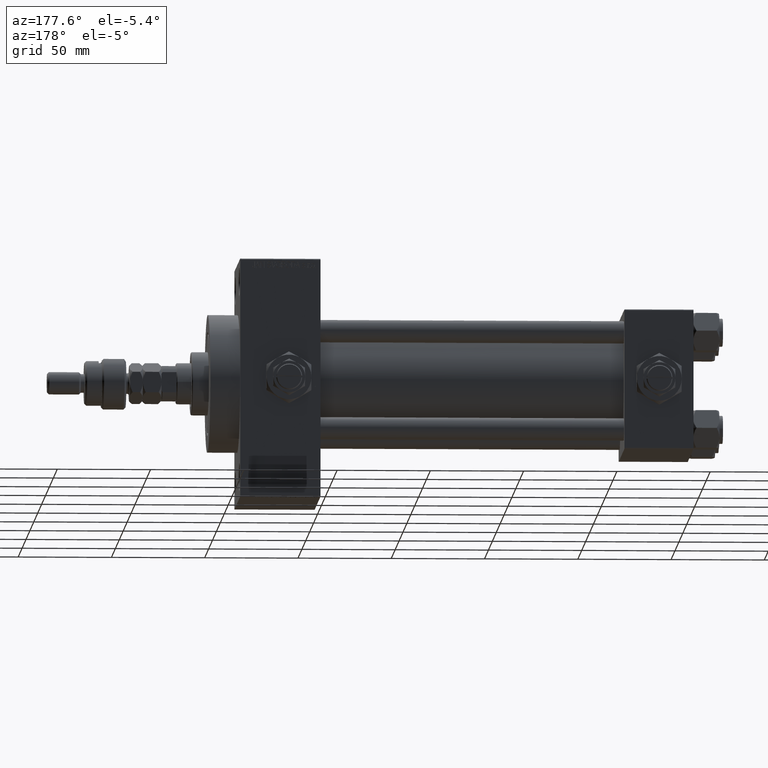
[diagram: clean part render]
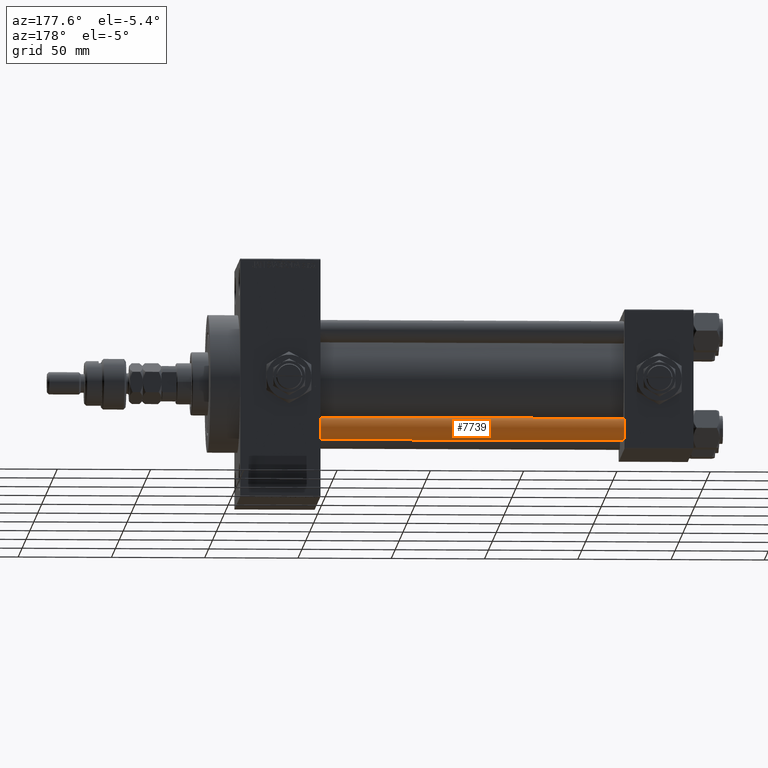
[diagram: same view with one face highlighted and labeled with its STEP entity id]
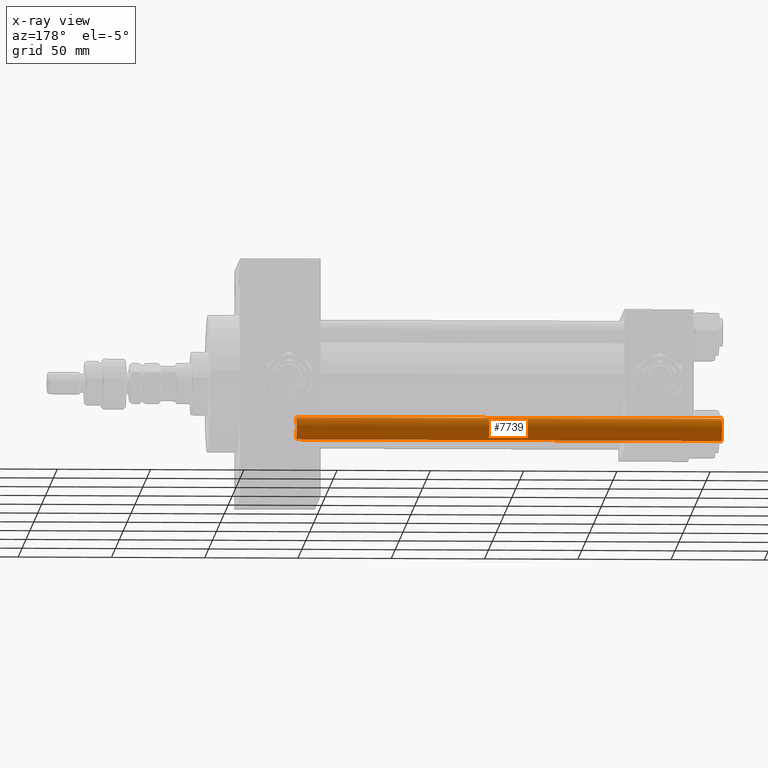
[diagram: x-ray of the same camera — body ghosted, the highlighted face saturated]
A machine part, auxiliary view. The second image highlights one B-rep face of the part: STEP entity #7739.
The next image is the same camera in x-ray: the body ghosted, the highlighted face saturated — about 0% of this face is hidden behind the body in this view.
In plain terms, the highlighted cylindrical surface (edge-blend (fillet) strip) has radius 6 mm, axis along (1, -0, 0).
Its self-contained STEP definition (entity closure, byte-faithful):
#1218 = DIRECTION ( 'NONE',  ( 1.000000000000000000, 0.000000000000000000, 0.000000000000000000 ) ) ;
#2263 = AXIS2_PLACEMENT_3D ( 'NONE', #5432, #32465, #1218 ) ;
#3082 = ORIENTED_EDGE ( 'NONE', *, *, #39941, .F. ) ;
#3864 = VERTEX_POINT ( 'NONE', #48547 ) ;
#4096 = VECTOR ( 'NONE', #12220, 1000.000000000000000 ) ;
#4345 = AXIS2_PLACEMENT_3D ( 'NONE', #38509, #34018, #26582 ) ;
#5432 = CARTESIAN_POINT ( 'NONE',  ( 0.000000000000000000, 0.000000000000000000, 228.5000000000001137 ) ) ;
#5629 = AXIS2_PLACEMENT_3D ( 'NONE', #34855, #14691, #51205 ) ;
#7493 = ORIENTED_EDGE ( 'NONE', *, *, #35169, .T. ) ;
#7739 = ADVANCED_FACE ( 'NONE', ( #14643 ), #18105, .T. ) ;
#12220 = DIRECTION ( 'NONE',  ( -0.000000000000000000, -0.000000000000000000, -1.000000000000000000 ) ) ;
#13195 = VECTOR ( 'NONE', #15970, 1000.000000000000000 ) ;
#14088 = ORIENTED_EDGE ( 'NONE', *, *, #30927, .T. ) ;
#14643 = FACE_OUTER_BOUND ( 'NONE', #49439, .T. ) ;
#14691 = DIRECTION ( 'NONE',  ( -0.000000000000000000, -0.000000000000000000, 1.000000000000000000 ) ) ;
#15970 = DIRECTION ( 'NONE',  ( -0.000000000000000000, -0.000000000000000000, -1.000000000000000000 ) ) ;
#17800 = ORIENTED_EDGE ( 'NONE', *, *, #21698, .T. ) ;
#18105 = CYLINDRICAL_SURFACE ( 'NONE', #4345, 6.000000000000000888 ) ;
#21698 = EDGE_CURVE ( 'NONE', #3864, #51962, #37771, .T. ) ;
#24189 = CIRCLE ( 'NONE', #2263, 6.000000000000000888 ) ;
#26582 = DIRECTION ( 'NONE',  ( -1.000000000000000000, 0.000000000000000000, 0.000000000000000000 ) ) ;
#27633 = LINE ( 'NONE', #48521, #13195 ) ;
#30369 = VERTEX_POINT ( 'NONE', #33106 ) ;
#30391 = CARTESIAN_POINT ( 'NONE',  ( -6.000000000000000888, 0.000000000000000000, 0.5000000000001392220 ) ) ;
#30927 = EDGE_CURVE ( 'NONE', #30369, #3864, #27633, .T. ) ;
#32465 = DIRECTION ( 'NONE',  ( 0.000000000000000000, 0.000000000000000000, -1.000000000000000000 ) ) ;
#33106 = CARTESIAN_POINT ( 'NONE',  ( 6.000000000000000888, 7.347880794884119736E-16, 228.5000000000001137 ) ) ;
#34018 = DIRECTION ( 'NONE',  ( -0.000000000000000000, -0.000000000000000000, -1.000000000000000000 ) ) ;
#34855 = CARTESIAN_POINT ( 'NONE',  ( 0.000000000000000000, 0.000000000000000000, 0.5000000000001392220 ) ) ;
#35169 = EDGE_CURVE ( 'NONE', #41974, #30369, #24189, .T. ) ;
#36087 = CARTESIAN_POINT ( 'NONE',  ( -6.000000000000000888, 0.000000000000000000, 229.0000000000000000 ) ) ;
#37446 = CARTESIAN_POINT ( 'NONE',  ( -6.000000000000000888, 0.000000000000000000, 228.5000000000001137 ) ) ;
#37771 = CIRCLE ( 'NONE', #5629, 6.000000000000000888 ) ;
#38509 = CARTESIAN_POINT ( 'NONE',  ( 0.000000000000000000, 0.000000000000000000, 229.0000000000000000 ) ) ;
#39941 = EDGE_CURVE ( 'NONE', #41974, #51962, #44516, .T. ) ;
#41974 = VERTEX_POINT ( 'NONE', #37446 ) ;
#44516 = LINE ( 'NONE', #36087, #4096 ) ;
#48521 = CARTESIAN_POINT ( 'NONE',  ( 6.000000000000000888, 7.347880794884119736E-16, 229.0000000000000000 ) ) ;
#48547 = CARTESIAN_POINT ( 'NONE',  ( 6.000000000000000888, 7.347880794884119736E-16, 0.5000000000001392220 ) ) ;
#49439 = EDGE_LOOP ( 'NONE', ( #7493, #14088, #17800, #3082 ) ) ;
#51205 = DIRECTION ( 'NONE',  ( 1.000000000000000000, 0.000000000000000000, 0.000000000000000000 ) ) ;
#51962 = VERTEX_POINT ( 'NONE', #30391 ) ;